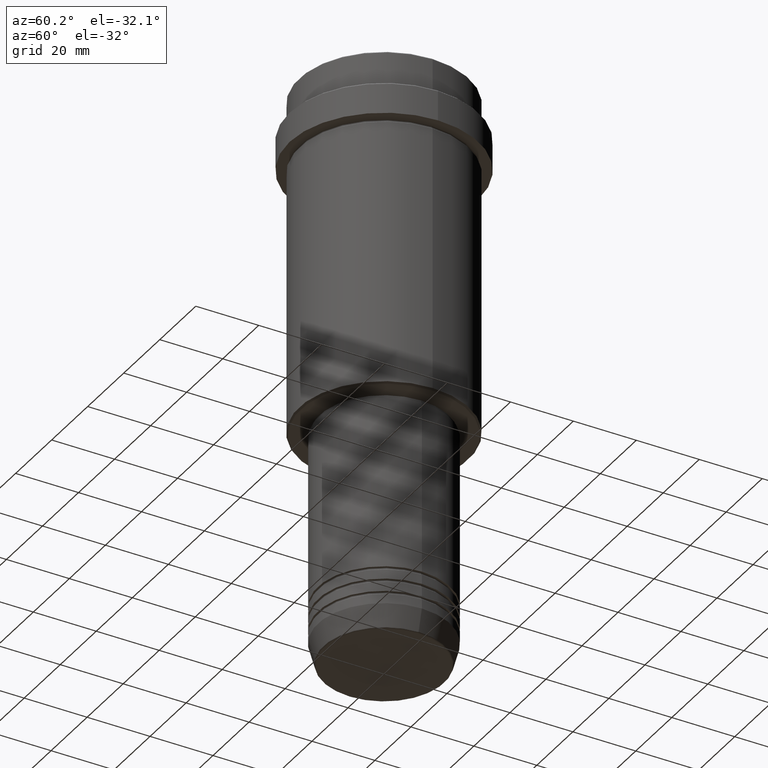
[diagram: clean part render]
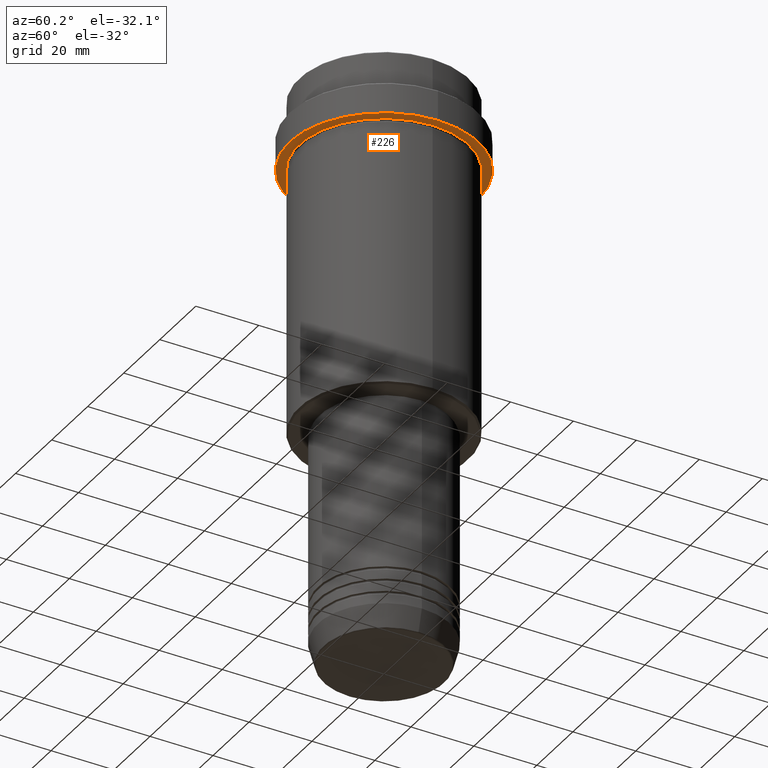
[diagram: same view with one face highlighted and labeled with its STEP entity id]
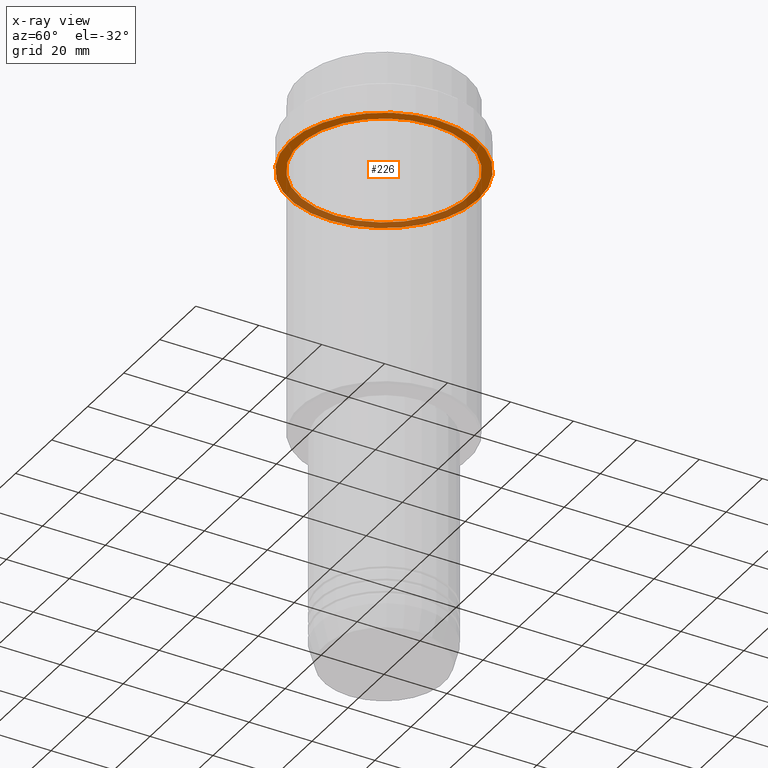
[diagram: x-ray of the same camera — body ghosted, the highlighted face saturated]
A machine part, auxiliary view. The second image highlights one B-rep face of the part: STEP entity #226.
The next image is the same camera in x-ray: the body ghosted, the highlighted face saturated — about 37% of this face is hidden behind the body in this view.
In plain terms, the highlighted planar face has unit normal (0, 0, -1).
Its self-contained STEP definition (entity closure, byte-faithful):
#39 = CARTESIAN_POINT ( 'NONE',  ( 0.000000000000000000, 0.000000000000000000, -22.00000000000000355 ) ) ;
#43 = CARTESIAN_POINT ( 'NONE',  ( 0.000000000000000000, 29.99999999999999645, -22.00000000000000000 ) ) ;
#56 = CARTESIAN_POINT ( 'NONE',  ( 0.000000000000000000, 0.000000000000000000, -22.00000000000000000 ) ) ;
#61 = AXIS2_PLACEMENT_3D ( 'NONE', #224, #1300, #1190 ) ;
#75 = EDGE_CURVE ( 'NONE', #722, #952, #634, .T. ) ;
#148 = DIRECTION ( 'NONE',  ( -0.000000000000000000, -0.000000000000000000, 1.000000000000000000 ) ) ;
#224 = CARTESIAN_POINT ( 'NONE',  ( 0.000000000000000000, 0.000000000000000000, -22.00000000000000000 ) ) ;
#226 = ADVANCED_FACE ( 'NONE', ( #726, #913 ), #591, .T. ) ;
#258 = VERTEX_POINT ( 'NONE', #618 ) ;
#284 = AXIS2_PLACEMENT_3D ( 'NONE', #56, #148, #506 ) ;
#285 = AXIS2_PLACEMENT_3D ( 'NONE', #39, #714, #617 ) ;
#380 = VERTEX_POINT ( 'NONE', #406 ) ;
#406 = CARTESIAN_POINT ( 'NONE',  ( -29.99999999999999645, 3.673940397442058389E-15, -22.00000000000000355 ) ) ;
#456 = DIRECTION ( 'NONE',  ( 0.000000000000000000, 0.000000000000000000, -1.000000000000000000 ) ) ;
#472 = CIRCLE ( 'NONE', #707, 29.99999999999999645 ) ;
#506 = DIRECTION ( 'NONE',  ( -1.000000000000000000, 0.000000000000000000, 0.000000000000000000 ) ) ;
#591 = PLANE ( 'NONE',  #1028 ) ;
#612 = CIRCLE ( 'NONE', #284, 26.99999999999999289 ) ;
#617 = DIRECTION ( 'NONE',  ( 1.000000000000000000, 0.000000000000000000, 0.000000000000000000 ) ) ;
#618 = CARTESIAN_POINT ( 'NONE',  ( 29.99999999999999645, 0.000000000000000000, -22.00000000000000355 ) ) ;
#634 = CIRCLE ( 'NONE', #61, 26.99999999999999289 ) ;
#639 = EDGE_CURVE ( 'NONE', #952, #722, #612, .T. ) ;
#685 = DIRECTION ( 'NONE',  ( -1.000000000000000000, 0.000000000000000000, -0.000000000000000000 ) ) ;
#691 = EDGE_CURVE ( 'NONE', #380, #258, #472, .T. ) ;
#707 = AXIS2_PLACEMENT_3D ( 'NONE', #1136, #930, #1131 ) ;
#713 = EDGE_CURVE ( 'NONE', #258, #380, #1115, .T. ) ;
#714 = DIRECTION ( 'NONE',  ( -0.000000000000000000, -0.000000000000000000, 1.000000000000000000 ) ) ;
#722 = VERTEX_POINT ( 'NONE', #1148 ) ;
#726 = FACE_BOUND ( 'NONE', #1230, .T. ) ;
#810 = ORIENTED_EDGE ( 'NONE', *, *, #691, .F. ) ;
#906 = ORIENTED_EDGE ( 'NONE', *, *, #75, .T. ) ;
#913 = FACE_OUTER_BOUND ( 'NONE', #949, .T. ) ;
#930 = DIRECTION ( 'NONE',  ( -0.000000000000000000, -0.000000000000000000, 1.000000000000000000 ) ) ;
#949 = EDGE_LOOP ( 'NONE', ( #1345, #810 ) ) ;
#952 = VERTEX_POINT ( 'NONE', #984 ) ;
#984 = CARTESIAN_POINT ( 'NONE',  ( -26.99999999999999289, 0.000000000000000000, -22.00000000000000000 ) ) ;
#1028 = AXIS2_PLACEMENT_3D ( 'NONE', #43, #456, #685 ) ;
#1115 = CIRCLE ( 'NONE', #285, 29.99999999999999645 ) ;
#1131 = DIRECTION ( 'NONE',  ( 1.000000000000000000, 0.000000000000000000, 0.000000000000000000 ) ) ;
#1136 = CARTESIAN_POINT ( 'NONE',  ( 0.000000000000000000, 0.000000000000000000, -22.00000000000000355 ) ) ;
#1148 = CARTESIAN_POINT ( 'NONE',  ( 26.99999999999999289, 3.306546357697852944E-15, -22.00000000000000000 ) ) ;
#1190 = DIRECTION ( 'NONE',  ( -1.000000000000000000, 0.000000000000000000, 0.000000000000000000 ) ) ;
#1230 = EDGE_LOOP ( 'NONE', ( #1260, #906 ) ) ;
#1260 = ORIENTED_EDGE ( 'NONE', *, *, #639, .T. ) ;
#1300 = DIRECTION ( 'NONE',  ( -0.000000000000000000, -0.000000000000000000, 1.000000000000000000 ) ) ;
#1345 = ORIENTED_EDGE ( 'NONE', *, *, #713, .F. ) ;